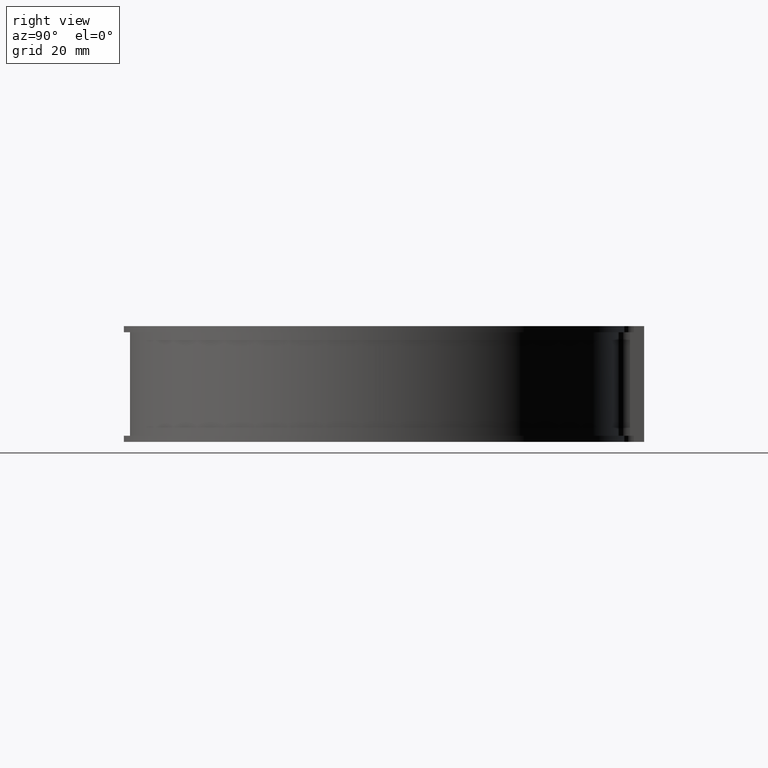
[diagram: clean part render]
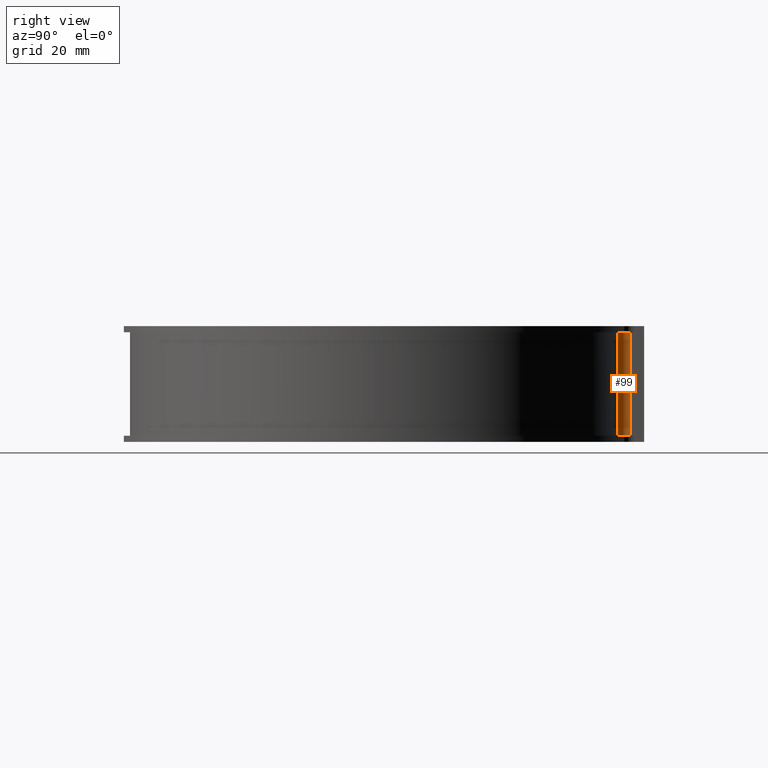
[diagram: same view with one face highlighted and labeled with its STEP entity id]
A machine part, right view. The second image highlights one B-rep face of the part: STEP entity #99.
In plain terms, the highlighted cylindrical surface (edge-blend (fillet) strip) has radius 3 mm, axis along (0, 0, -1).
Its self-contained STEP definition (entity closure, byte-faithful):
#99 = ADVANCED_FACE( '', ( #150 ), #151, .F. );
#150 = FACE_OUTER_BOUND( '', #202, .T. );
#151 = CYLINDRICAL_SURFACE( '', #203, 3.00000000000000 );
#202 = EDGE_LOOP( '', ( #414, #415, #416, #417 ) );
#203 = AXIS2_PLACEMENT_3D( '', #418, #419, #420 );
#414 = ORIENTED_EDGE( '', *, *, #495, .F. );
#415 = ORIENTED_EDGE( '', *, *, #454, .T. );
#416 = ORIENTED_EDGE( '', *, *, #499, .T. );
#417 = ORIENTED_EDGE( '', *, *, #497, .F. );
#418 = CARTESIAN_POINT( '', ( 7.00000000000000, 61.7545342464827, -14.0000000000000 ) );
#419 = DIRECTION( '', ( 0.000000000000000, 0.000000000000000, -1.00000000000000 ) );
#420 = DIRECTION( '', ( -0.0845308537616220, -0.996420862267712, 0.000000000000000 ) );
#454 = EDGE_CURVE( '', #550, #548, #551, .T. );
#495 = EDGE_CURVE( '', #550, #613, #614, .T. );
#497 = EDGE_CURVE( '', #613, #616, #617, .T. );
#499 = EDGE_CURVE( '', #548, #616, #619, .T. );
#548 = VERTEX_POINT( '', #687 );
#550 = VERTEX_POINT( '', #690 );
#551 = CIRCLE( '', #691, 3.00000000000000 );
#613 = VERTEX_POINT( '', #778 );
#614 = LINE( '', #779, #780 );
#616 = VERTEX_POINT( '', #782 );
#617 = CIRCLE( '', #783, 3.00000000000000 );
#619 = LINE( '', #786, #787 );
#687 = CARTESIAN_POINT( '', ( 4.00000000000000, 61.7545342464827, -12.5000000000000 ) );
#690 = CARTESIAN_POINT( '', ( 6.66210780370075, 58.7736235024851, -12.5000000000000 ) );
#691 = AXIS2_PLACEMENT_3D( '', #826, #827, #828 );
#778 = CARTESIAN_POINT( '', ( 6.66210780370074, 58.7736235024851, 12.5000000000000 ) );
#779 = CARTESIAN_POINT( '', ( 6.66210780370075, 58.7736235024851, -14.0000000000000 ) );
#780 = VECTOR( '', #899, 1000.00000000000 );
#782 = CARTESIAN_POINT( '', ( 4.00000000000000, 61.7545342464827, 12.5000000000000 ) );
#783 = AXIS2_PLACEMENT_3D( '', #903, #904, #905 );
#786 = CARTESIAN_POINT( '', ( 4.00000000000000, 61.7545342464827, -14.0000000000000 ) );
#787 = VECTOR( '', #907, 1000.00000000000 );
#826 = CARTESIAN_POINT( '', ( 7.00000000000000, 61.7545342464827, -12.5000000000000 ) );
#827 = DIRECTION( '', ( 0.000000000000000, 0.000000000000000, -1.00000000000000 ) );
#828 = DIRECTION( '', ( -1.00000000000000, -9.71445146547012E-016, 0.000000000000000 ) );
#899 = DIRECTION( '', ( 0.000000000000000, 0.000000000000000, 1.00000000000000 ) );
#903 = CARTESIAN_POINT( '', ( 7.00000000000000, 61.7545342464827, 12.5000000000000 ) );
#904 = DIRECTION( '', ( 0.000000000000000, 0.000000000000000, -1.00000000000000 ) );
#905 = DIRECTION( '', ( -1.00000000000000, -9.71445146547012E-016, 0.000000000000000 ) );
#907 = DIRECTION( '', ( 0.000000000000000, 0.000000000000000, 1.00000000000000 ) );